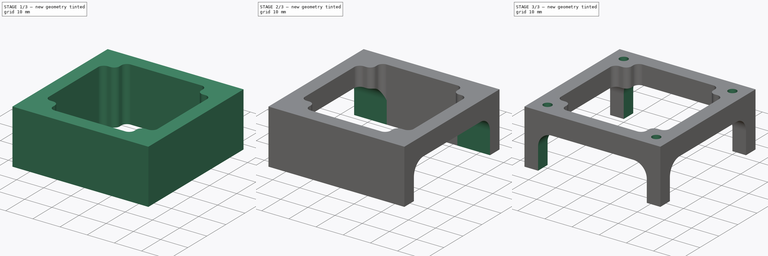
[diagram: build sequence overview — one tinted view per stage of 3, left to right]
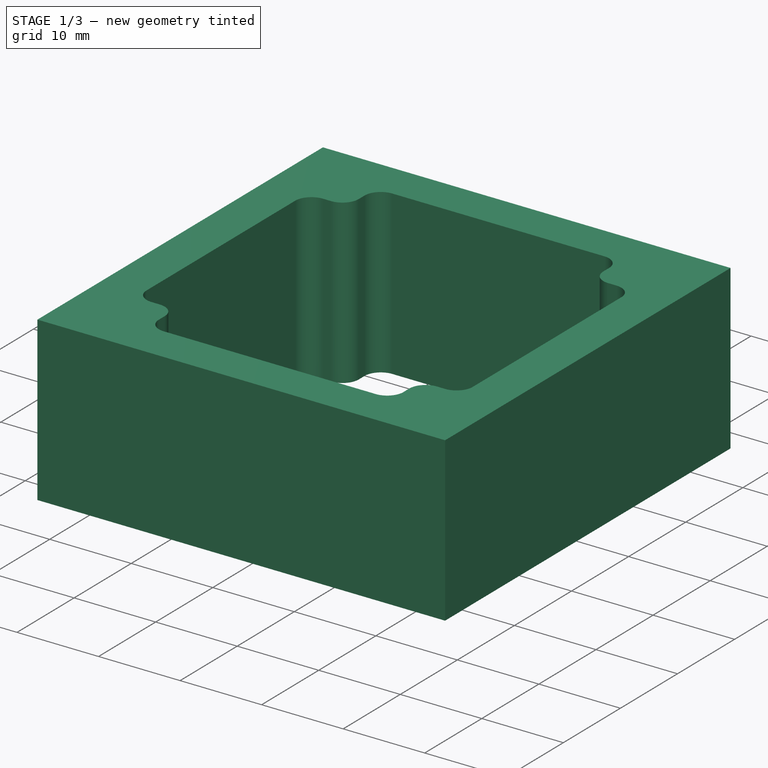
[diagram: stage 1 of 3 — iso view after this stage's code; geometry added in this stage tinted green]
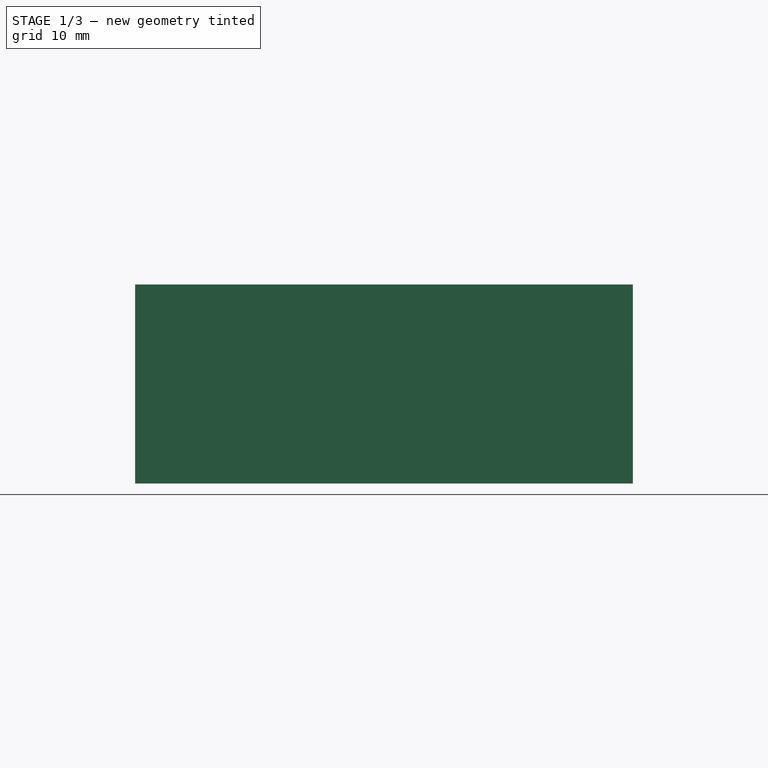
[diagram: stage 1 of 3 — front view after this stage's code; geometry added in this stage tinted green]
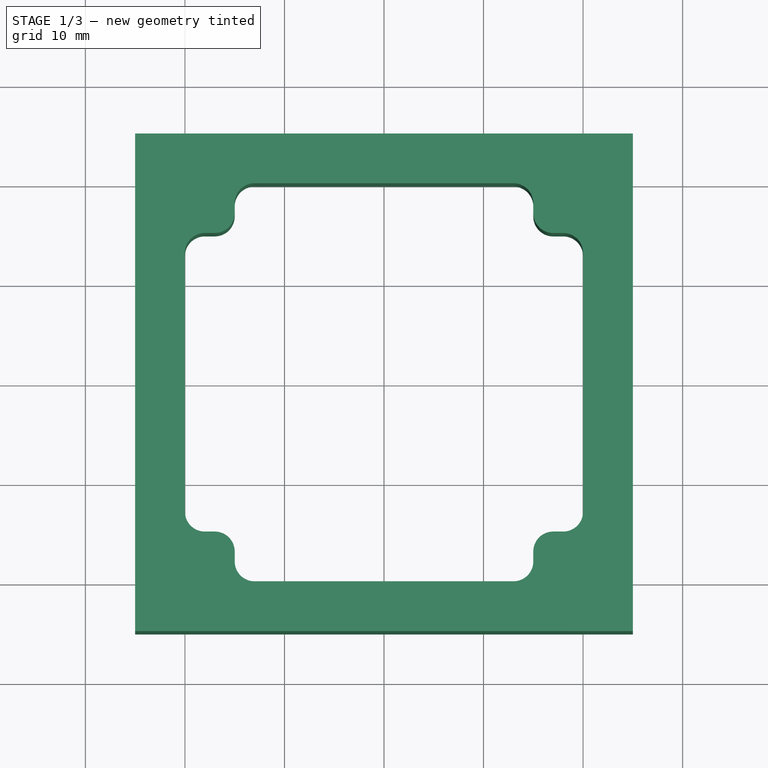
[diagram: stage 1 of 3 — top view after this stage's code; geometry added in this stage tinted green]
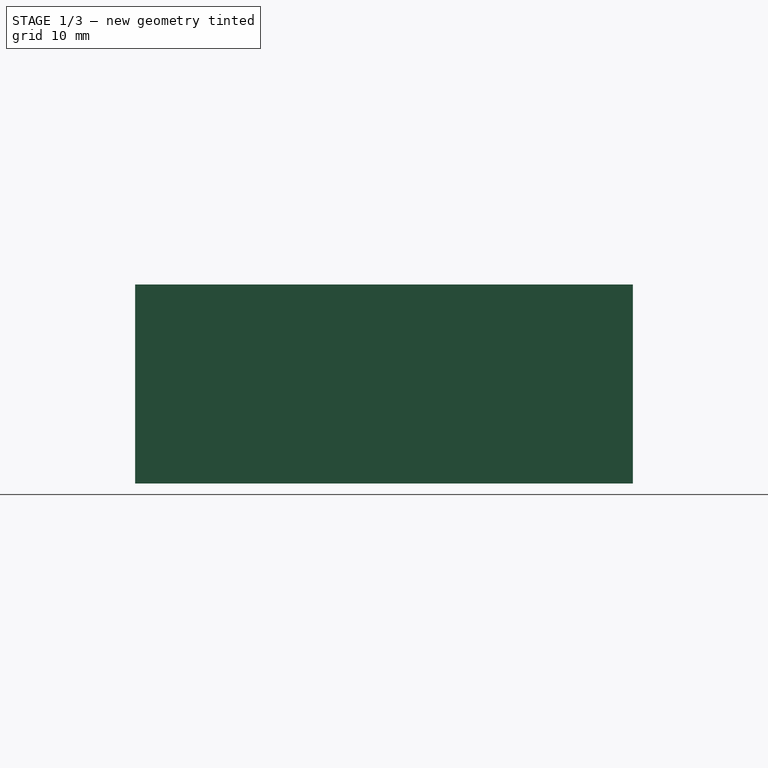
[diagram: stage 1 of 3 — right view after this stage's code; geometry added in this stage tinted green]
FCSTD DOCUMENT  (FreeCAD 0.20R29603 (Git))
Label: BackplaneBlock
License: All rights reserved
LicenseURL: http://en.wikipedia.org/wiki/All_rights_reserved
objects: Sketcher::SketchObject×5, PartDesign::Pocket×4, PartDesign::Pad×1, PartDesign::Body×1
note: 16 computed .brp shape members not serialized (recipe doc carries the construction recipe); baked Part::Feature solids carry a one-line shape summary decoded from their .brp

FEATURE [Sketcher::SketchObject] Sketch
  FullyConstrained = true
  MapMode = 5
  Support = -> [XY_Plane]
  sketch-geometry (4):
    g0: LineSegment StartX=-25 StartY=25 StartZ=0 EndX=25 EndY=25 EndZ=0
    g1: LineSegment StartX=25 StartY=25 StartZ=0 EndX=25 EndY=-25 EndZ=0
    g2: LineSegment StartX=25 StartY=-25 StartZ=0 EndX=-25 EndY=-25 EndZ=0
    g3: LineSegment StartX=-25 StartY=-25 StartZ=0 EndX=-25 EndY=25 EndZ=0
  constraints (10):
    c: Coincident(g0,g1)
    c: Coincident(g1,g2)
    c: Coincident(g2,g3)
    c: Coincident(g3,g0)
    c: Horizontal(g0)
    c: Vertical(g3)
    c: Symmetric(g2,g1,g-2)
    c: Symmetric(g1,g0,g-1)
    c: DistanceY(g1,g1) = 50
    c: DistanceX(g2,g2) = 50
FEATURE [PartDesign::Pad] Pad
  Direction = (0,0,1)
  Length = 20
  Length2 = 10
  Profile = -> Sketch
  ReferenceAxis = -> Sketch [N_Axis]
  Type = 0
FEATURE [Sketcher::SketchObject] Sketch001
  ExternalGeometry = -> [Pad]
  FullyConstrained = true
  MapMode = 5
  Placement = pos=(0,0,20) rot=(0,0,1;0rad)
  Support = -> [Pad]
  sketch-geometry (36):
    g0: LineSegment StartX=-18 StartY=15 StartZ=0 EndX=-17 EndY=15 EndZ=0
    g1: LineSegment StartX=20 StartY=13 StartZ=0 EndX=20 EndY=-13 EndZ=0
    g2: LineSegment StartX=18 StartY=-15 StartZ=0 EndX=17 EndY=-15 EndZ=0
    g3: LineSegment StartX=-20 StartY=-13 StartZ=0 EndX=-20 EndY=13 EndZ=0
    g4: LineSegment StartX=-13 StartY=20 StartZ=0 EndX=13 EndY=20 EndZ=0
    g5: LineSegment StartX=15 StartY=18 StartZ=0 EndX=15 EndY=17 EndZ=0
    g6: LineSegment StartX=13 StartY=-20 StartZ=0 EndX=-13 EndY=-20 EndZ=0
    g7: LineSegment StartX=-15 StartY=-18 StartZ=0 EndX=-15 EndY=-17 EndZ=0
    g8: LineSegment StartX=17 StartY=15 StartZ=0 EndX=18 EndY=15 EndZ=0
    g9: LineSegment StartX=-15 StartY=17 StartZ=0 EndX=-15 EndY=18 EndZ=0
    g10: LineSegment StartX=-17 StartY=-15 StartZ=0 EndX=-18 EndY=-15 EndZ=0
    g11: LineSegment StartX=15 StartY=-17 StartZ=0 EndX=15 EndY=-18 EndZ=0
    g12: ArcOfCircle CenterX=-13 CenterY=-18 CenterZ=0 NormalX=0 NormalY=0 NormalZ=1 AngleXU=0 Radius=2 StartAngle=3.14159 EndAngle=4.71239
    g13: GeomPoint X=-15 Y=-20 Z=0
    g14: ArcOfCircle CenterX=13 CenterY=-18 CenterZ=0 NormalX=0 NormalY=0 NormalZ=1 AngleXU=0 Radius=2 StartAngle=4.71239 EndAngle=6.28319
    g15: GeomPoint X=15 Y=-20 Z=0
    g16: ArcOfCircle CenterX=17 CenterY=-17 CenterZ=0 NormalX=0 NormalY=0 NormalZ=1 AngleXU=0 Radius=2 StartAngle=1.5708 EndAngle=3.14159
    g17: GeomPoint X=15 Y=-15 Z=0
    g18: ArcOfCircle CenterX=18 CenterY=-13 CenterZ=0 NormalX=0 NormalY=0 NormalZ=1 AngleXU=0 Radius=2 StartAngle=4.71239 EndAngle=6.28319
    g19: GeomPoint X=20 Y=-15 Z=0
    g20: ArcOfCircle CenterX=18 CenterY=13 CenterZ=0 NormalX=0 NormalY=0 NormalZ=1 AngleXU=0 Radius=2 StartAngle=0 EndAngle=1.5708
    g21: GeomPoint X=20 Y=15 Z=0
    g22: ArcOfCircle CenterX=17 CenterY=17 CenterZ=0 NormalX=0 NormalY=0 NormalZ=1 AngleXU=0 Radius=2 StartAngle=3.14159 EndAngle=4.71239
    g23: GeomPoint X=15 Y=15 Z=0
    g24: ArcOfCircle CenterX=13 CenterY=18 CenterZ=0 NormalX=0 NormalY=0 NormalZ=1 AngleXU=0 Radius=2 StartAngle=4e-16 EndAngle=1.5708
    g25: GeomPoint X=15 Y=20 Z=0
    g26: ArcOfCircle CenterX=-13 CenterY=18 CenterZ=0 NormalX=0 NormalY=0 NormalZ=1 AngleXU=0 Radius=2 StartAngle=1.5708 EndAngle=3.14159
    g27: GeomPoint X=-15 Y=20 Z=0
    g28: ArcOfCircle CenterX=-17 CenterY=17 CenterZ=0 NormalX=0 NormalY=0 NormalZ=1 AngleXU=0 Radius=2 StartAngle=4.71239 EndAngle=6.28319
    g29: GeomPoint X=-15 Y=15 Z=0
    g30: ArcOfCircle CenterX=-18 CenterY=13 CenterZ=0 NormalX=0 NormalY=0 NormalZ=1 AngleXU=0 Radius=2 StartAngle=1.5708 EndAngle=3.14159
    g31: GeomPoint X=-20 Y=15 Z=0
    g32: ArcOfCircle CenterX=-18 CenterY=-13 CenterZ=0 NormalX=0 NormalY=0 NormalZ=1 AngleXU=0 Radius=2 StartAngle=3.14159 EndAngle=4.71239
    g33: GeomPoint X=-20 Y=-15 Z=0
    g34: ArcOfCircle CenterX=-17 CenterY=-17 CenterZ=0 NormalX=0 NormalY=0 NormalZ=1 AngleXU=0 Radius=2 StartAngle=0 EndAngle=1.5708
    g35: GeomPoint X=-15 Y=-15 Z=0
  constraints (80):
    c: Horizontal(g2)
    c: Vertical(g3)
    c: Symmetric(g21,g31,g-2)
    c: Symmetric(g21,g19,g-1)
    c: DistanceX(g31,g21) = 40
    c: DistanceY(g19,g21) = 30
    c: Horizontal(g4)
    c: Vertical(g7)
    c: Symmetric(g13,g15,g-2)
    c: Symmetric(g15,g25,g-1)
    c: DistanceY(g15,g25) = 40
    c: Vertical(g9)
    c: Vertical(g5)
    c: Vertical(g11)
    c: Horizontal(g10)
    c: Horizontal(g8)
    c: Horizontal(g0)
    c: DistanceX(g13,g15) = 30
    c: DistanceY(g33,g31) = 30
    c: DistanceX(g27,g25) = 30
    c: PointOnObject(g13,g7)
    c: PointOnObject(g13,g6)
    c: Tangent(g7,g12) = 1.5708
    c: Tangent(g6,g12) = 1.5708
    c: Radius(g12) = 2
    c: PointOnObject(g15,g11)
    c: PointOnObject(g15,g6)
    c: Tangent(g11,g14) = 1.5708
    c: Tangent(g6,g14) = 1.5708
    c: PointOnObject(g17,g11)
    c: PointOnObject(g17,g2)
    c: Tangent(g11,g16) = -1.5708
    c: Tangent(g2,g16) = -1.5708
    c: PointOnObject(g19,g2)
    c: PointOnObject(g19,g1)
    c: Tangent(g2,g18) = 1.5708
    c: Tangent(g1,g18) = 1.5708
    c: PointOnObject(g21,g1)
    c: PointOnObject(g21,g8)
    c: Tangent(g1,g20) = 1.5708
    c: Tangent(g8,g20) = 1.5708
    c: PointOnObject(g23,g8)
    c: PointOnObject(g23,g5)
    c: Tangent(g8,g22) = -1.5708
    c: Tangent(g5,g22) = -1.5708
    c: PointOnObject(g25,g5)
    c: PointOnObject(g25,g4)
    c: Tangent(g5,g24) = 1.5708
    c: Tangent(g4,g24) = 1.5708
    c: PointOnObject(g27,g9)
    c: PointOnObject(g27,g4)
    c: Tangent(g9,g26) = 1.5708
    c: Tangent(g4,g26) = 1.5708
    c: PointOnObject(g29,g9)
    c: PointOnObject(g29,g0)
    c: Tangent(g9,g28) = -1.5708
    c: Tangent(g0,g28) = -1.5708
    c: PointOnObject(g31,g0)
    c: PointOnObject(g31,g3)
    c: Tangent(g0,g30) = 1.5708
    c: Tangent(g3,g30) = 1.5708
    c: PointOnObject(g33,g3)
    c: PointOnObject(g33,g10)
    c: Tangent(g3,g32) = 1.5708
    c: Tangent(g10,g32) = 1.5708
    c: PointOnObject(g35,g10)
    c: PointOnObject(g35,g7)
    c: Tangent(g10,g34) = -1.5708
    c: Tangent(g7,g34) = -1.5708
    c: Radius(g34) = 2
    c: Radius(g32) = 2
    c: Radius(g30) = 2
    c: Radius(g28) = 2
    c: Radius(g26) = 2
    c: Radius(g24) = 2
    c: Radius(g22) = 2
    c: Radius(g20) = 2
    c: Radius(g18) = 2
    c: Radius(g16) = 2
    c: Radius(g14) = 2
FEATURE [PartDesign::Pocket] Pocket
  BaseFeature = -> Pad
  Direction = (0,0,-1)
  Length = 5
  Length2 = 5
  Profile = -> Sketch001
  ReferenceAxis = -> Sketch001 [N_Axis]
  Type = 1
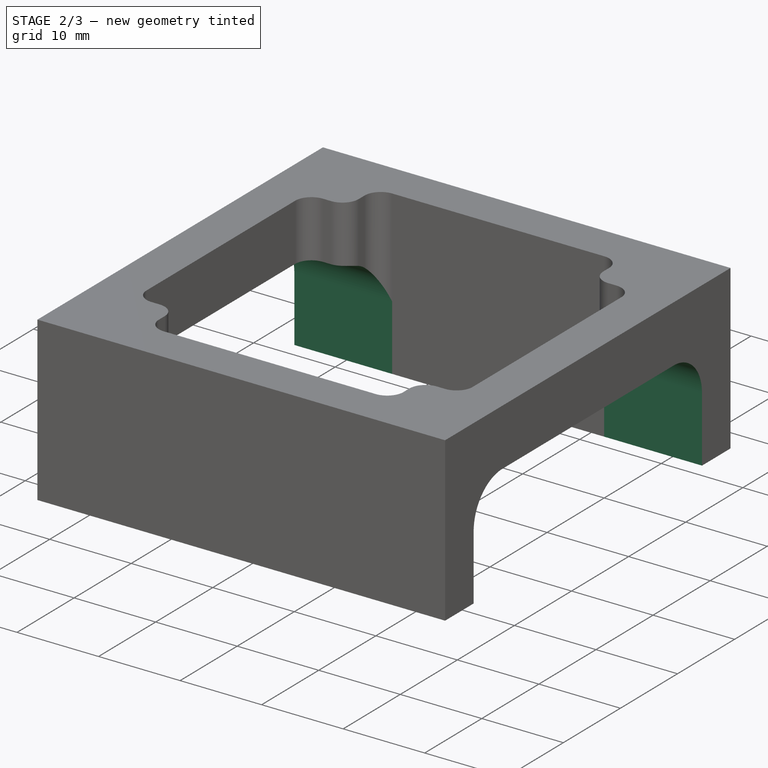
[diagram: stage 2 of 3 — iso view after this stage's code; geometry added in this stage tinted green]
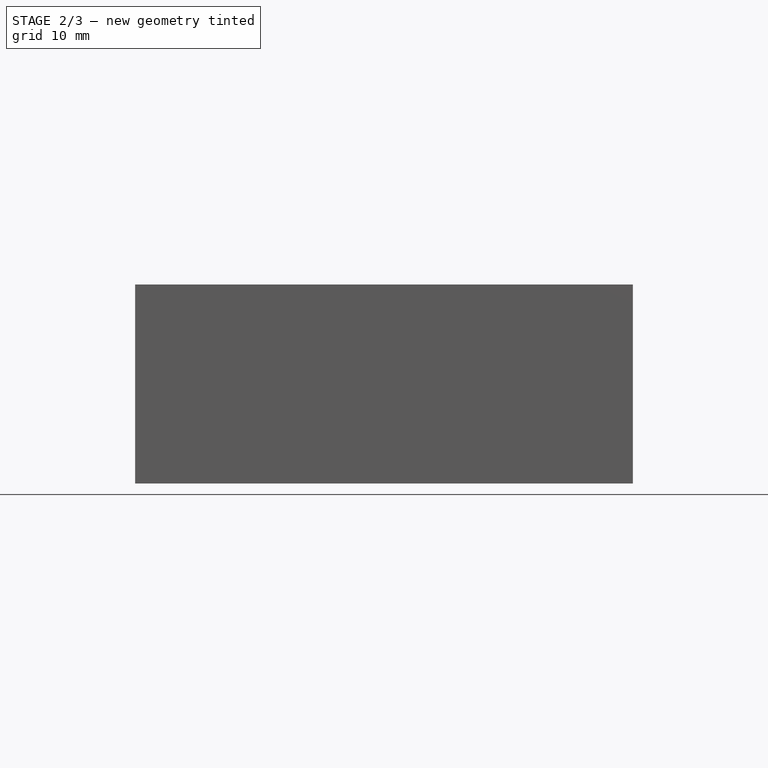
[diagram: stage 2 of 3 — front view after this stage's code; geometry added in this stage tinted green]
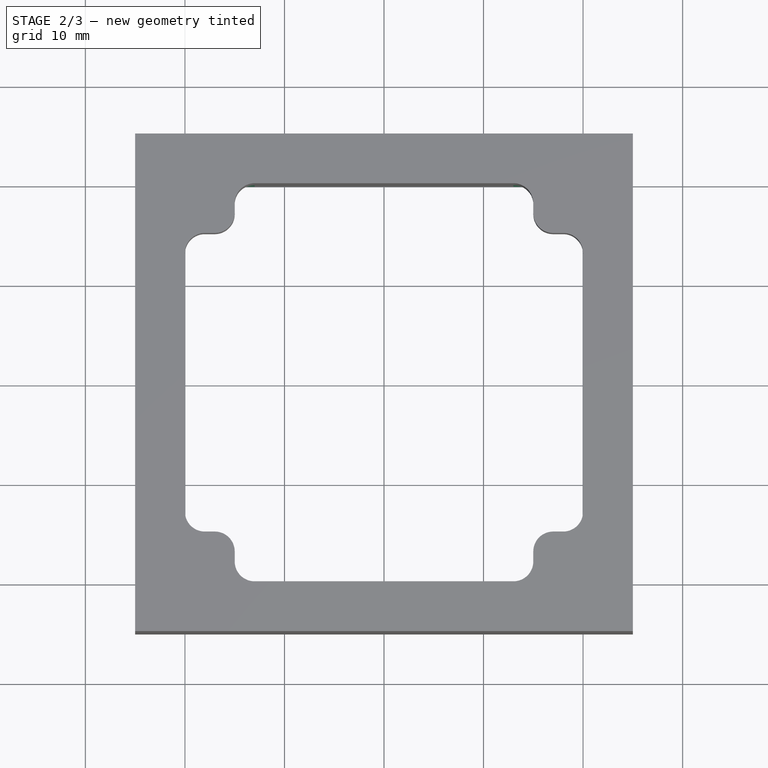
[diagram: stage 2 of 3 — top view after this stage's code; geometry added in this stage tinted green]
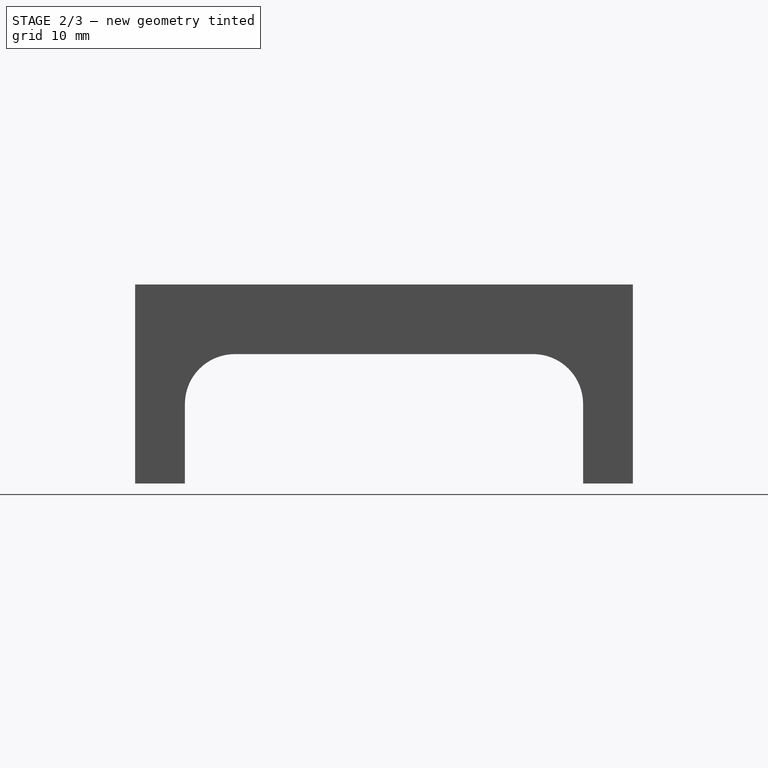
[diagram: stage 2 of 3 — right view after this stage's code; geometry added in this stage tinted green]
FEATURE [Sketcher::SketchObject] Sketch002
  ExternalGeometry = -> [Pocket]
  FullyConstrained = true
  MapMode = 5
  Placement = pos=(25,0,0) rot=(0.57735,0.57735,0.57735;2.0944rad)
  Support = -> [Pocket]
  sketch-geometry (6):
    g0: LineSegment StartX=-15 StartY=13 StartZ=0 EndX=15 EndY=13 EndZ=0
    g1: LineSegment StartX=20 StartY=8 StartZ=0 EndX=20 EndY=0 EndZ=0
    g2: LineSegment StartX=20 StartY=0 StartZ=0 EndX=-20 EndY=0 EndZ=0
    g3: LineSegment StartX=-20 StartY=0 StartZ=0 EndX=-20 EndY=8 EndZ=0
    g4: ArcOfCircle CenterX=15 CenterY=8 CenterZ=0 NormalX=0 NormalY=0 NormalZ=1 AngleXU=0 Radius=5 StartAngle=0 EndAngle=1.5708
    g5: ArcOfCircle CenterX=-15 CenterY=8 CenterZ=0 NormalX=0 NormalY=0 NormalZ=1 AngleXU=0 Radius=5 StartAngle=1.5708 EndAngle=3.14159
  constraints (15):
    c: Coincident(g1,g2)
    c: Coincident(g2,g3)
    c: Vertical(g1)
    c: Vertical(g3)
    c: PointOnObject(g1,g-1)
    c: Tangent(g1,g4) = 1.5708
    c: Tangent(g0,g4) = 1.5708
    c: Tangent(g0,g5) = 1.5708
    c: Tangent(g3,g5) = 1.5708
    c: Horizontal(g0)
    c: DistanceX(g2,g2) = 40
    c: Symmetric(g2,g1,g-2)
    c: Distance(g-1,g0) = 13
    c: Radius(g5) = 5
    c: Radius(g4) = 5
FEATURE [Sketcher::SketchObject] Sketch003
  FullyConstrained = true
  MapMode = 5
  Placement = pos=(0,-25,0) rot=(1,0,0;1.5708rad)
  Support = -> [Pocket]
  sketch-geometry (6):
    g0: LineSegment StartX=-15 StartY=13 StartZ=0 EndX=15 EndY=13 EndZ=0
    g1: LineSegment StartX=20 StartY=8 StartZ=0 EndX=20 EndY=0 EndZ=0
    g2: LineSegment StartX=20 StartY=0 StartZ=0 EndX=-20 EndY=0 EndZ=0
    g3: LineSegment StartX=-20 StartY=0 StartZ=0 EndX=-20 EndY=8 EndZ=0
    g4: ArcOfCircle CenterX=15 CenterY=8 CenterZ=0 NormalX=0 NormalY=0 NormalZ=1 AngleXU=0 Radius=5 StartAngle=0 EndAngle=1.5708
    g5: ArcOfCircle CenterX=-15 CenterY=8 CenterZ=0 NormalX=0 NormalY=0 NormalZ=1 AngleXU=0 Radius=5 StartAngle=1.5708 EndAngle=3.14159
  constraints (15):
    c: Coincident(g1,g2)
    c: Coincident(g2,g3)
    c: Horizontal(g0)
    c: Vertical(g1)
    c: Vertical(g3)
    c: Symmetric(g2,g1,g-2)
    c: PointOnObject(g1,g-1)
    c: Tangent(g0,g4) = 1.5708
    c: Tangent(g1,g4) = 1.5708
    c: Tangent(g0,g5) = 1.5708
    c: Tangent(g3,g5) = 1.5708
    c: DistanceX(g2,g2) = 40
    c: Distance(g-1,g0) = 13
    c: Radius(g5) = 5
    c: Radius(g4) = 5
FEATURE [PartDesign::Pocket] Pocket001
  BaseFeature = -> Pocket
  Direction = (-1,0,0)
  Length = 5
  Length2 = 5
  Profile = -> Sketch002
  ReferenceAxis = -> Sketch002 [N_Axis]
  Type = 1
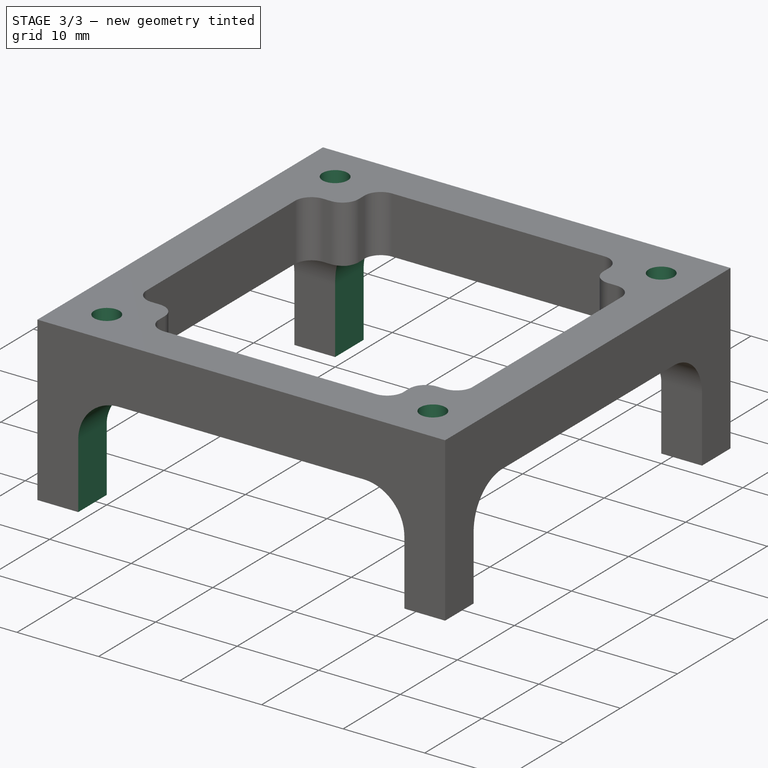
[diagram: stage 3 of 3 — iso view after this stage's code; geometry added in this stage tinted green]
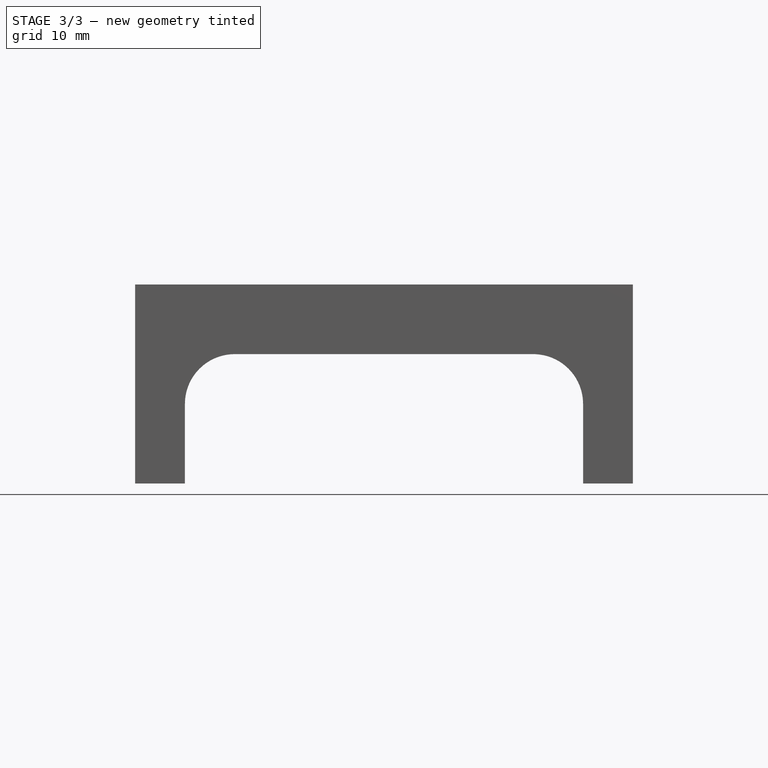
[diagram: stage 3 of 3 — front view after this stage's code; geometry added in this stage tinted green]
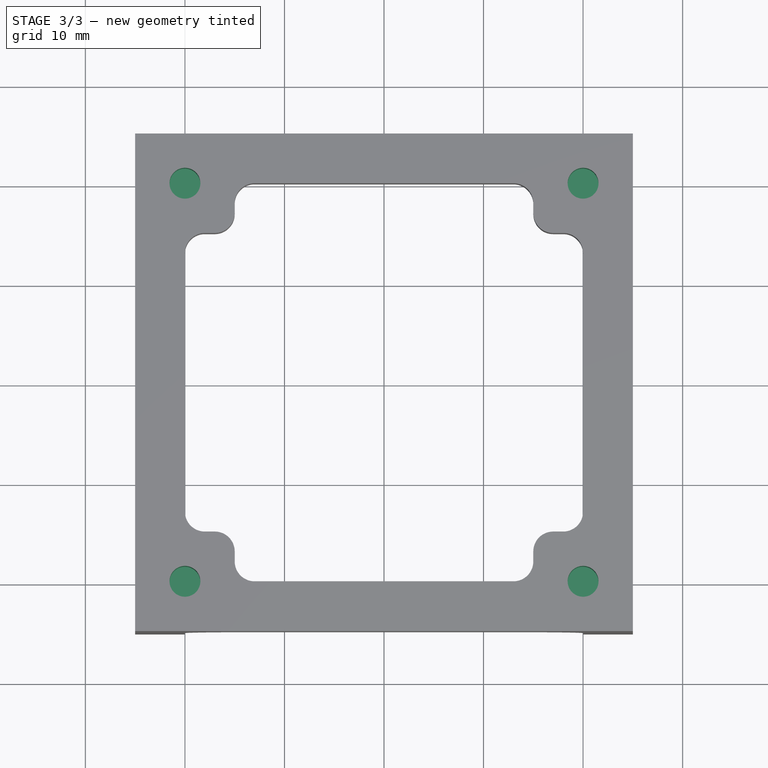
[diagram: stage 3 of 3 — top view after this stage's code; geometry added in this stage tinted green]
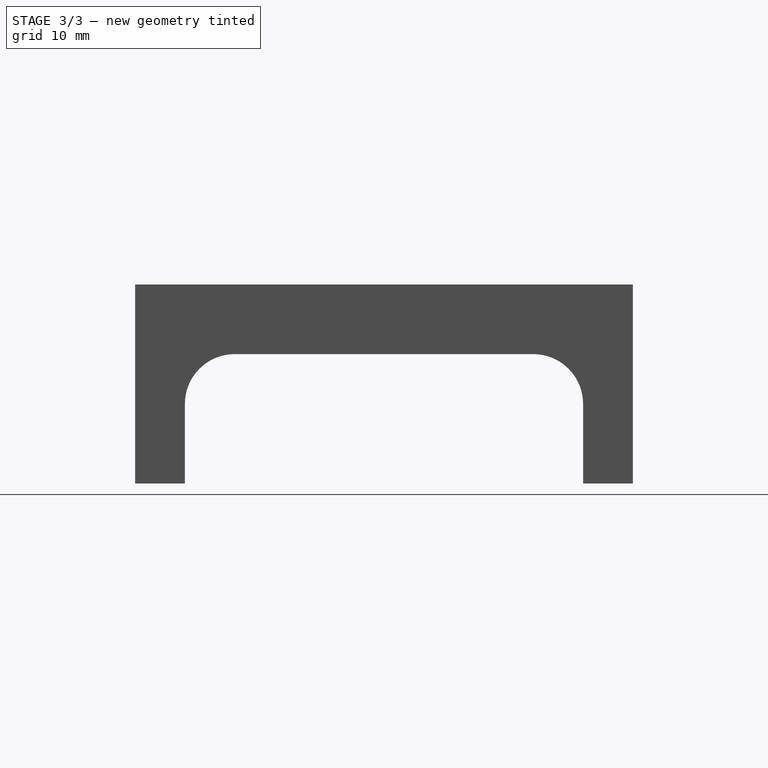
[diagram: stage 3 of 3 — right view after this stage's code; geometry added in this stage tinted green]
FEATURE [PartDesign::Pocket] Pocket002
  BaseFeature = -> Pocket001
  Direction = (0,1,-2e-16)
  Length = 5
  Length2 = 5
  Profile = -> Sketch003
  ReferenceAxis = -> Sketch003 [N_Axis]
  Type = 1
FEATURE [Sketcher::SketchObject] Sketch009
  FullyConstrained = false
  MapMode = 5
  Placement = pos=(0,0,20) rot=(0,0,1;0rad)
  sketch-geometry (4):
    g0: Circle CenterX=-20 CenterY=20 CenterZ=0 NormalX=0 NormalY=0 NormalZ=1 AngleXU=0 Radius=1.55
    g1: Circle CenterX=20 CenterY=20 CenterZ=0 NormalX=0 NormalY=0 NormalZ=1 AngleXU=0 Radius=1.55
    g2: Circle CenterX=20 CenterY=-20 CenterZ=0 NormalX=0 NormalY=0 NormalZ=1 AngleXU=0 Radius=1.55
    g3: Circle CenterX=-20 CenterY=-20 CenterZ=0 NormalX=0 NormalY=0 NormalZ=1 AngleXU=0 Radius=1.55
  constraints (4):
    c: Diameter(g0) = 3.1
    c: Diameter(g1) = 3.1
    c: Diameter(g2) = 3.1
    c: Diameter(g3) = 3.1
FEATURE [PartDesign::Pocket] Pocket008
  BaseFeature = -> Pocket002
  Direction = (0,0,-1)
  Length = 5
  Length2 = 5
  Profile = -> Sketch009
  ReferenceAxis = -> Sketch009 [N_Axis]
  Type = 0
FEATURE [PartDesign::Body] Body
  Group = -> [Sketch,Pad,Sketch001,Pocket,Sketch002,Sketch003,Pocket001,Pocket002,Sketch009,Pocket008]
  Origin = -> Origin
  Tip = -> Pocket008
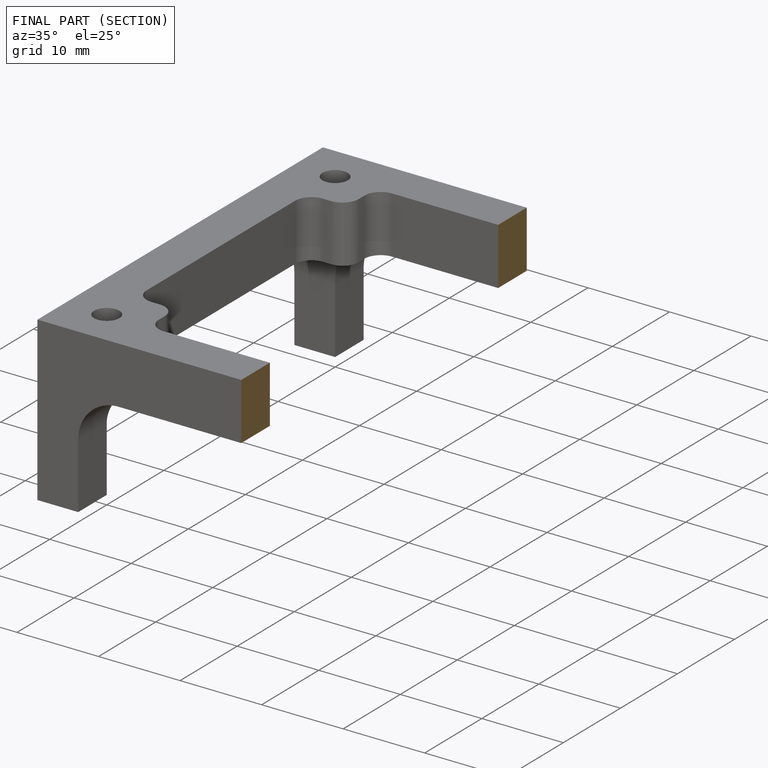
[diagram: finished part — half-section view (interior)]
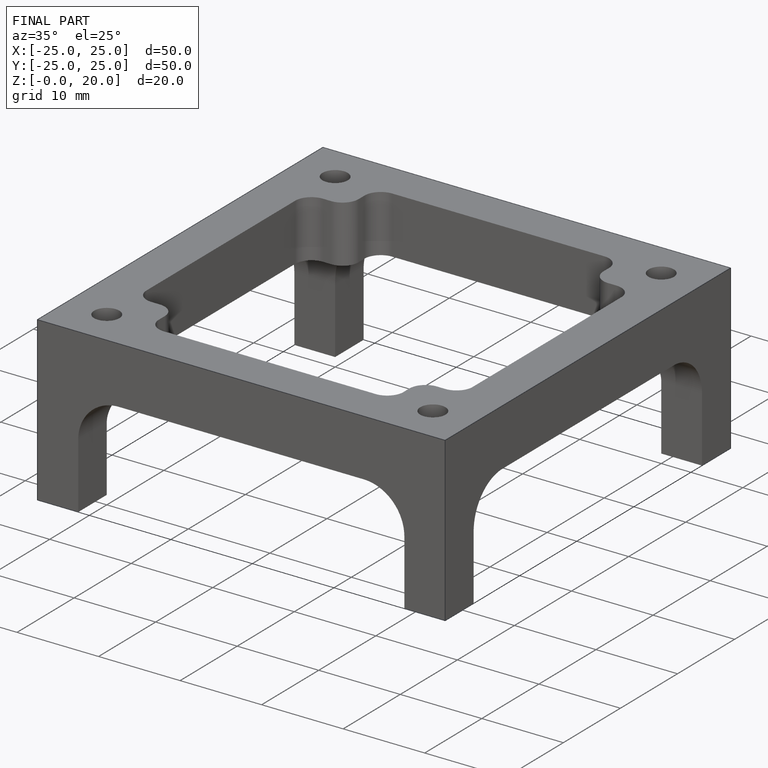
[diagram: finished part — iso view with bounding-box wireframe]
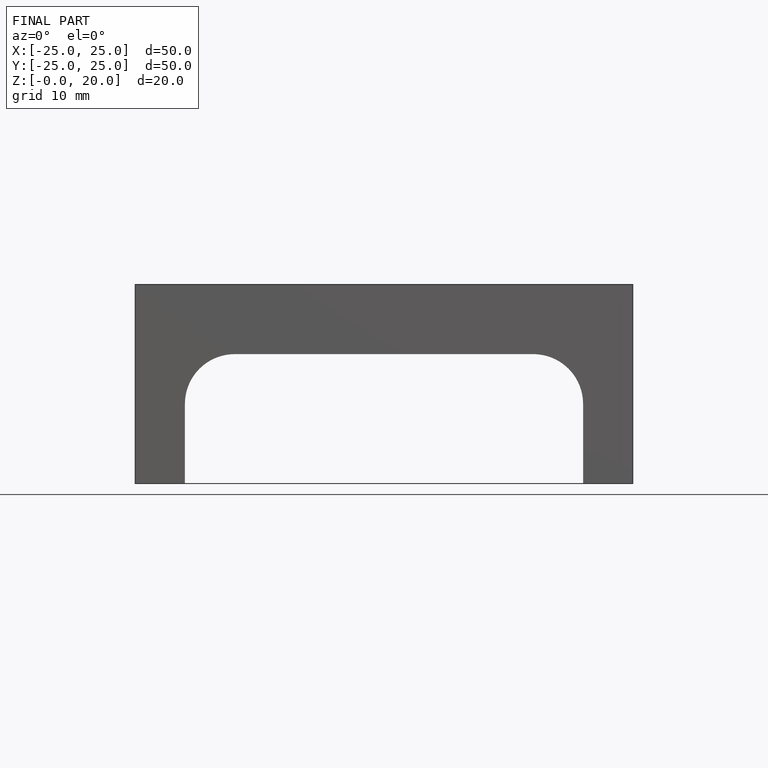
[diagram: finished part — front view with bounding-box wireframe]
